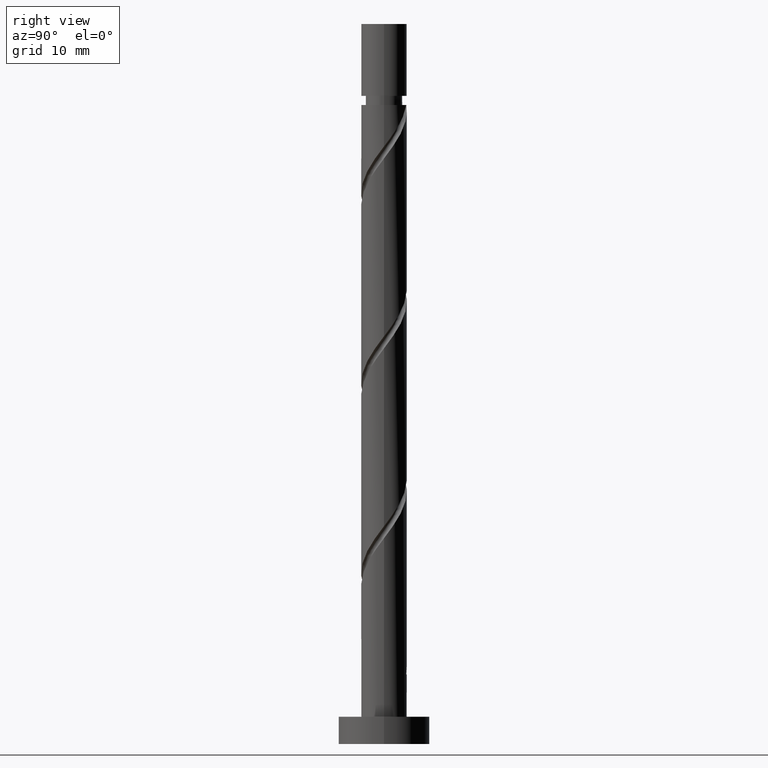
[diagram: clean part render]
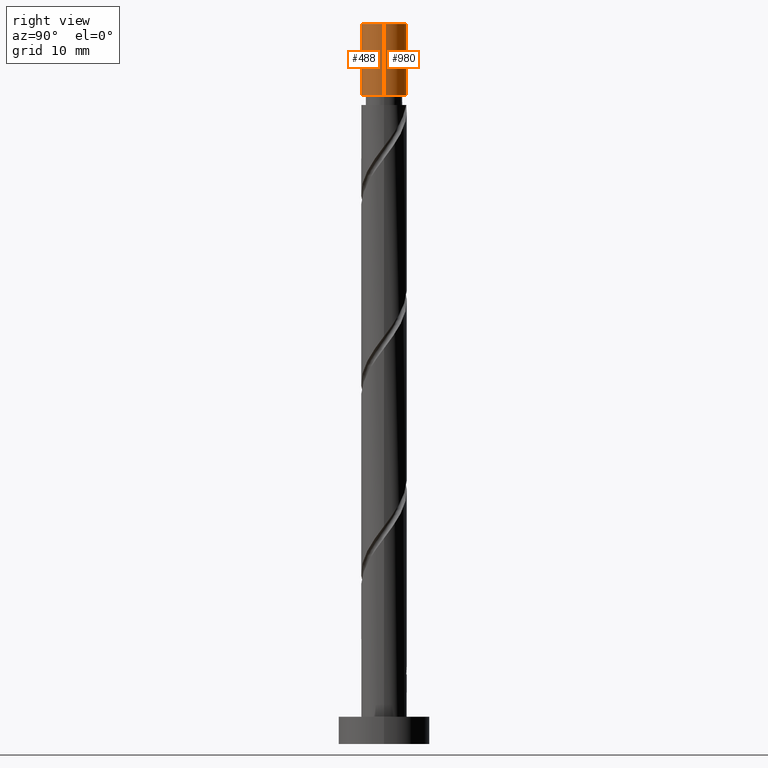
[diagram: same view with one multi-face feature highlighted, each face labeled with its STEP entity id]
A machine part, right view. The highlighted faces form ONE feature: a constant-radius fillet chain: 2 tangent blend faces with common blend radius 2.5 mm. The faces share edges in the B-rep.
Their STEP definitions:
[1] entity #488 (Cylinder):
#17 = DIRECTION ( 'NONE',  ( -0.000000000000000000, -0.000000000000000000, -1.000000000000000000 ) ) ;
#103 = CARTESIAN_POINT ( 'NONE',  ( 0.000000000000000000, 0.000000000000000000, 79.00000000000000000 ) ) ;
#129 = DIRECTION ( 'NONE',  ( 0.000000000000000000, 0.000000000000000000, 1.000000000000000000 ) ) ;
#138 = EDGE_CURVE ( 'NONE', #1058, #897, #601, .T. ) ;
#171 = ORIENTED_EDGE ( 'NONE', *, *, #228, .F. ) ;
#207 = FACE_OUTER_BOUND ( 'NONE', #431, .T. ) ;
#220 = CIRCLE ( 'NONE', #876, 2.500000000000000000 ) ;
#228 = EDGE_CURVE ( 'NONE', #813, #1080, #758, .T. ) ;
#261 = CARTESIAN_POINT ( 'NONE',  ( 2.500000000000000000, 3.061616997868383141E-16, 79.00000000000000000 ) ) ;
#347 = CARTESIAN_POINT ( 'NONE',  ( -2.500000000000000000, 0.000000000000000000, 79.00000000000000000 ) ) ;
#393 = AXIS2_PLACEMENT_3D ( 'NONE', #547, #691, #1547 ) ;
#400 = CARTESIAN_POINT ( 'NONE',  ( 2.500000000000000000, 3.061616997868383141E-16, 79.00000000000000000 ) ) ;
#431 = EDGE_LOOP ( 'NONE', ( #171, #655, #1302, #1200 ) ) ;
#488 = ADVANCED_FACE ( 'NONE', ( #207 ), #918, .T. ) ;
#516 = DIRECTION ( 'NONE',  ( -0.000000000000000000, -0.000000000000000000, -1.000000000000000000 ) ) ;
#534 = EDGE_CURVE ( 'NONE', #1058, #813, #220, .T. ) ;
#547 = CARTESIAN_POINT ( 'NONE',  ( 0.000000000000000000, 0.000000000000000000, 79.00000000000000000 ) ) ;
#601 = LINE ( 'NONE', #1446, #675 ) ;
#613 = DIRECTION ( 'NONE',  ( 1.000000000000000000, 0.000000000000000000, 0.000000000000000000 ) ) ;
#655 = ORIENTED_EDGE ( 'NONE', *, *, #534, .F. ) ;
#675 = VECTOR ( 'NONE', #841, 1000.000000000000000 ) ;
#677 = CIRCLE ( 'NONE', #754, 2.500000000000003109 ) ;
#691 = DIRECTION ( 'NONE',  ( -0.000000000000000000, -0.000000000000000000, -1.000000000000000000 ) ) ;
#718 = CARTESIAN_POINT ( 'NONE',  ( 2.500000000000002665, 3.061616997868386592E-16, 71.11457832954572211 ) ) ;
#754 = AXIS2_PLACEMENT_3D ( 'NONE', #1224, #17, #1232 ) ;
#758 = LINE ( 'NONE', #400, #855 ) ;
#813 = VERTEX_POINT ( 'NONE', #261 ) ;
#841 = DIRECTION ( 'NONE',  ( -0.000000000000000000, -0.000000000000000000, -1.000000000000000000 ) ) ;
#855 = VECTOR ( 'NONE', #516, 1000.000000000000000 ) ;
#871 = CARTESIAN_POINT ( 'NONE',  ( -2.500000000000003109, 0.000000000000000000, 71.11457832954572211 ) ) ;
#876 = AXIS2_PLACEMENT_3D ( 'NONE', #103, #129, #613 ) ;
#897 = VERTEX_POINT ( 'NONE', #871 ) ;
#918 = CYLINDRICAL_SURFACE ( 'NONE', #393, 2.500000000000000000 ) ;
#1058 = VERTEX_POINT ( 'NONE', #347 ) ;
#1080 = VERTEX_POINT ( 'NONE', #718 ) ;
#1200 = ORIENTED_EDGE ( 'NONE', *, *, #1301, .F. ) ;
#1224 = CARTESIAN_POINT ( 'NONE',  ( 0.000000000000000000, 0.000000000000000000, 71.11457832954572211 ) ) ;
#1232 = DIRECTION ( 'NONE',  ( -1.000000000000000000, 0.000000000000000000, 0.000000000000000000 ) ) ;
#1301 = EDGE_CURVE ( 'NONE', #1080, #897, #677, .T. ) ;
#1302 = ORIENTED_EDGE ( 'NONE', *, *, #138, .T. ) ;
#1446 = CARTESIAN_POINT ( 'NONE',  ( -2.500000000000000000, 0.000000000000000000, 79.00000000000000000 ) ) ;
#1547 = DIRECTION ( 'NONE',  ( -1.000000000000000000, 0.000000000000000000, 0.000000000000000000 ) ) ;
[2] entity #980 (Cylinder):
#43 = CARTESIAN_POINT ( 'NONE',  ( 0.000000000000000000, 0.000000000000000000, 79.00000000000000000 ) ) ;
#92 = CIRCLE ( 'NONE', #834, 2.500000000000000000 ) ;
#108 = ORIENTED_EDGE ( 'NONE', *, *, #138, .F. ) ;
#138 = EDGE_CURVE ( 'NONE', #1058, #897, #601, .T. ) ;
#144 = AXIS2_PLACEMENT_3D ( 'NONE', #1492, #884, #1369 ) ;
#228 = EDGE_CURVE ( 'NONE', #813, #1080, #758, .T. ) ;
#261 = CARTESIAN_POINT ( 'NONE',  ( 2.500000000000000000, 3.061616997868383141E-16, 79.00000000000000000 ) ) ;
#269 = AXIS2_PLACEMENT_3D ( 'NONE', #43, #766, #1237 ) ;
#293 = CYLINDRICAL_SURFACE ( 'NONE', #269, 2.500000000000000000 ) ;
#296 = CIRCLE ( 'NONE', #144, 2.500000000000003109 ) ;
#298 = EDGE_LOOP ( 'NONE', ( #1192, #816, #945, #108 ) ) ;
#347 = CARTESIAN_POINT ( 'NONE',  ( -2.500000000000000000, 0.000000000000000000, 79.00000000000000000 ) ) ;
#400 = CARTESIAN_POINT ( 'NONE',  ( 2.500000000000000000, 3.061616997868383141E-16, 79.00000000000000000 ) ) ;
#408 = CARTESIAN_POINT ( 'NONE',  ( 0.000000000000000000, 0.000000000000000000, 79.00000000000000000 ) ) ;
#516 = DIRECTION ( 'NONE',  ( -0.000000000000000000, -0.000000000000000000, -1.000000000000000000 ) ) ;
#601 = LINE ( 'NONE', #1446, #675 ) ;
#675 = VECTOR ( 'NONE', #841, 1000.000000000000000 ) ;
#718 = CARTESIAN_POINT ( 'NONE',  ( 2.500000000000002665, 3.061616997868386592E-16, 71.11457832954572211 ) ) ;
#758 = LINE ( 'NONE', #400, #855 ) ;
#766 = DIRECTION ( 'NONE',  ( -0.000000000000000000, -0.000000000000000000, -1.000000000000000000 ) ) ;
#813 = VERTEX_POINT ( 'NONE', #261 ) ;
#816 = ORIENTED_EDGE ( 'NONE', *, *, #228, .T. ) ;
#834 = AXIS2_PLACEMENT_3D ( 'NONE', #408, #888, #894 ) ;
#841 = DIRECTION ( 'NONE',  ( -0.000000000000000000, -0.000000000000000000, -1.000000000000000000 ) ) ;
#855 = VECTOR ( 'NONE', #516, 1000.000000000000000 ) ;
#871 = CARTESIAN_POINT ( 'NONE',  ( -2.500000000000003109, 0.000000000000000000, 71.11457832954572211 ) ) ;
#884 = DIRECTION ( 'NONE',  ( -0.000000000000000000, -0.000000000000000000, -1.000000000000000000 ) ) ;
#888 = DIRECTION ( 'NONE',  ( 0.000000000000000000, 0.000000000000000000, 1.000000000000000000 ) ) ;
#894 = DIRECTION ( 'NONE',  ( 1.000000000000000000, 0.000000000000000000, 0.000000000000000000 ) ) ;
#897 = VERTEX_POINT ( 'NONE', #871 ) ;
#945 = ORIENTED_EDGE ( 'NONE', *, *, #1468, .F. ) ;
#980 = ADVANCED_FACE ( 'NONE', ( #1259 ), #293, .T. ) ;
#1019 = EDGE_CURVE ( 'NONE', #813, #1058, #92, .T. ) ;
#1058 = VERTEX_POINT ( 'NONE', #347 ) ;
#1080 = VERTEX_POINT ( 'NONE', #718 ) ;
#1192 = ORIENTED_EDGE ( 'NONE', *, *, #1019, .F. ) ;
#1237 = DIRECTION ( 'NONE',  ( -1.000000000000000000, 0.000000000000000000, 0.000000000000000000 ) ) ;
#1259 = FACE_OUTER_BOUND ( 'NONE', #298, .T. ) ;
#1369 = DIRECTION ( 'NONE',  ( -1.000000000000000000, 0.000000000000000000, 0.000000000000000000 ) ) ;
#1446 = CARTESIAN_POINT ( 'NONE',  ( -2.500000000000000000, 0.000000000000000000, 79.00000000000000000 ) ) ;
#1468 = EDGE_CURVE ( 'NONE', #897, #1080, #296, .T. ) ;
#1492 = CARTESIAN_POINT ( 'NONE',  ( 0.000000000000000000, 0.000000000000000000, 71.11457832954572211 ) ) ;